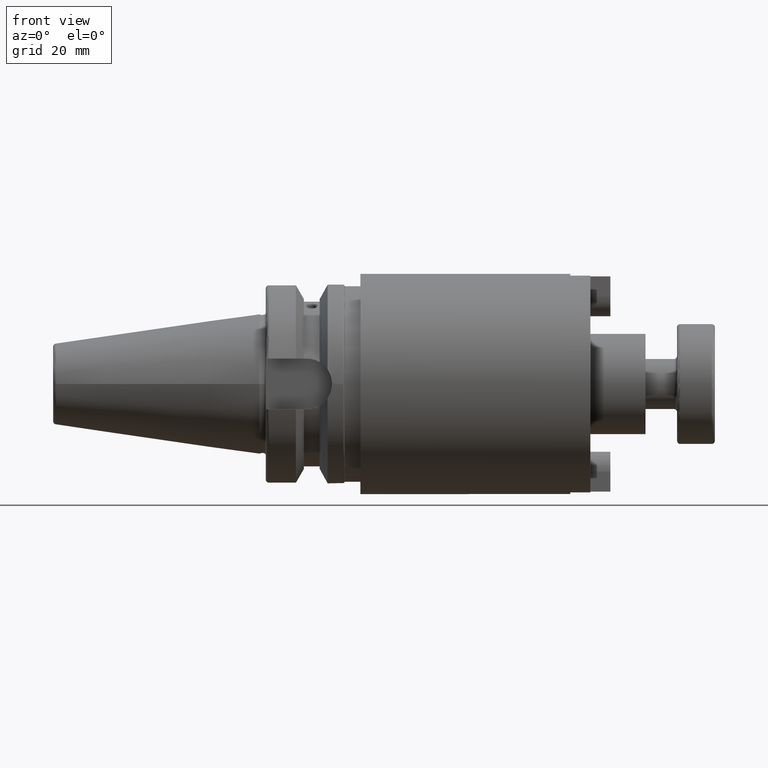
[diagram: clean part render]
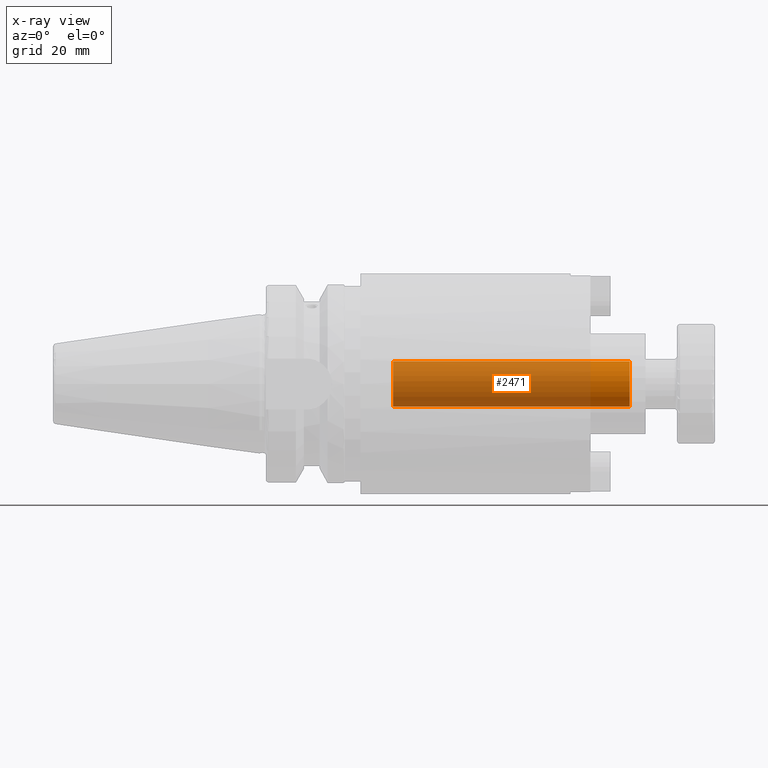
[diagram: x-ray — body ghosted, one internal face saturated and labeled with its STEP entity id]
A machine part, front view, then the same camera in x-ray: the body is ghosted and one INTERNAL B-rep face — a face not visible from any outside direction — is saturated and labeled: STEP entity #2471.
In plain terms, the highlighted cylindrical surface (bore or boss wall) has radius 7.1755 mm, axis along (1, 0, 0).
Its self-contained STEP definition (entity closure, byte-faithful):
#571=CYLINDRICAL_SURFACE('',#2766,7.1755);
#621=CIRCLE('',#2763,7.1755);
#624=CIRCLE('',#2767,7.1755);
#768=FACE_OUTER_BOUND('',#895,.T.);
#895=EDGE_LOOP('',(#1861,#1862,#1863,#1864));
#1049=LINE('',#3933,#1184);
#1184=VECTOR('',#3151,7.1755);
#1322=VERTEX_POINT('',#3923);
#1325=VERTEX_POINT('',#3931);
#1531=EDGE_CURVE('',#1322,#1322,#621,.T.);
#1535=EDGE_CURVE('',#1325,#1325,#624,.T.);
#1536=EDGE_CURVE('',#1325,#1322,#1049,.T.);
#1861=ORIENTED_EDGE('',*,*,#1535,.F.);
#1862=ORIENTED_EDGE('',*,*,#1536,.T.);
#1863=ORIENTED_EDGE('',*,*,#1531,.F.);
#1864=ORIENTED_EDGE('',*,*,#1536,.F.);
#2471=ADVANCED_FACE('',(#768),#571,.F.);
#2763=AXIS2_PLACEMENT_3D('',#3924,#3140,#3141);
#2766=AXIS2_PLACEMENT_3D('',#3930,#3147,#3148);
#2767=AXIS2_PLACEMENT_3D('',#3932,#3149,#3150);
#3140=DIRECTION('center_axis',(1.,0.,0.));
#3141=DIRECTION('ref_axis',(0.,0.,-1.));
#3147=DIRECTION('center_axis',(1.,0.,0.));
#3148=DIRECTION('ref_axis',(0.,0.,-1.));
#3149=DIRECTION('center_axis',(-1.,0.,0.));
#3150=DIRECTION('ref_axis',(0.,0.,-1.));
#3151=DIRECTION('',(-1.,0.,0.));
#3923=CARTESIAN_POINT('',(42.38,-8.78745310728183E-16,7.1755));
#3924=CARTESIAN_POINT('Origin',(42.38,0.,0.));
#3930=CARTESIAN_POINT('Origin',(82.38,0.,0.));
#3931=CARTESIAN_POINT('',(117.38,8.78745310728183E-16,7.1755));
#3932=CARTESIAN_POINT('Origin',(117.38,0.,0.));
#3933=CARTESIAN_POINT('',(82.38,-8.78745310728183E-16,7.1755));